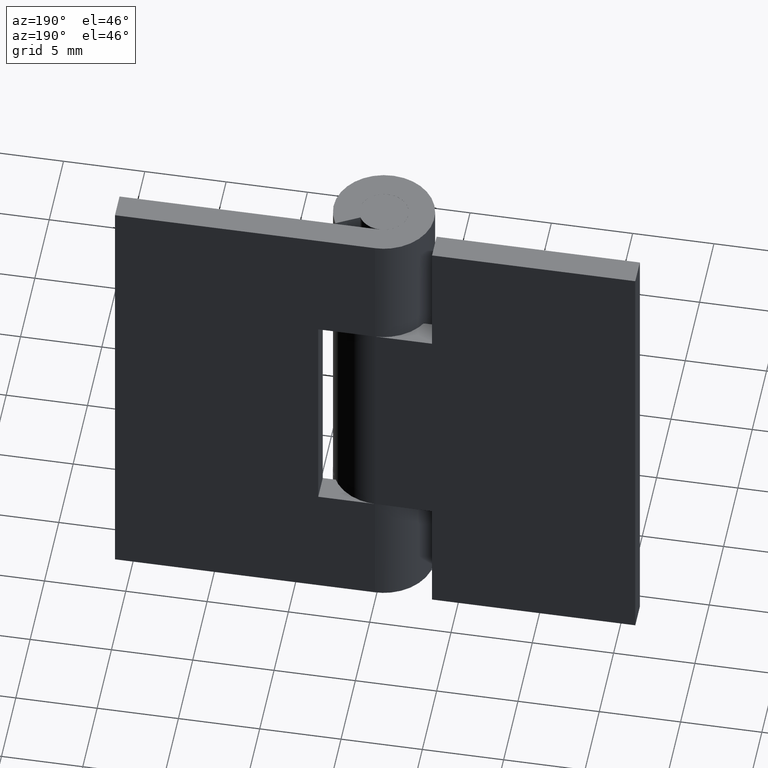
[diagram: clean part render]
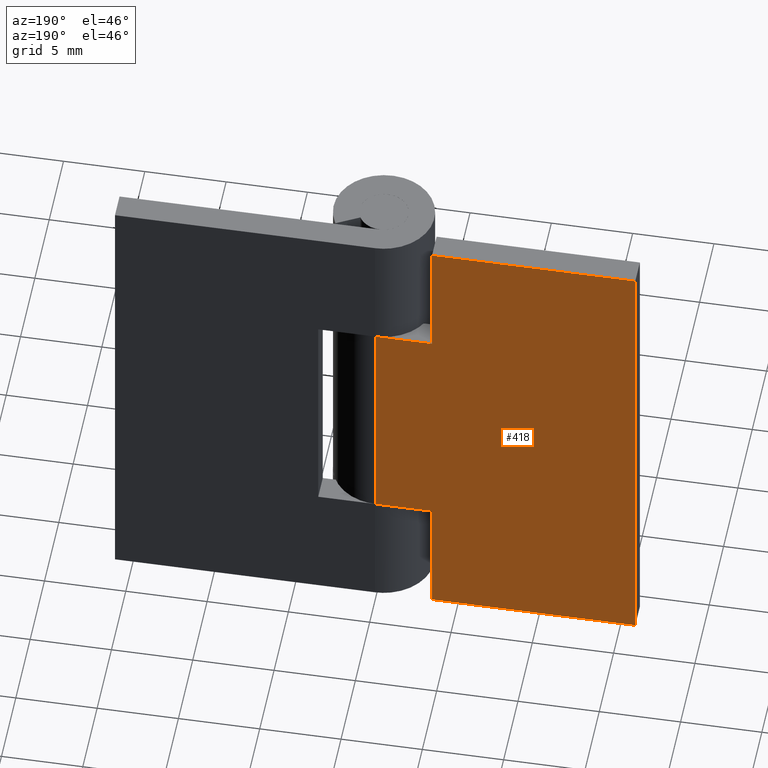
[diagram: same view with one face highlighted and labeled with its STEP entity id]
A machine part, auxiliary view. The second image highlights one B-rep face of the part: STEP entity #418.
In plain terms, the highlighted face is a freeform B-spline surface patch.
Its self-contained STEP definition (entity closure, byte-faithful):
#72=CARTESIAN_POINT('',(-0.003521362805221,3.099998000000000,22.300002999999801));
#73=VERTEX_POINT('',#72);
#79=CARTESIAN_POINT('',(-3.500000000000100,3.099998000000050,22.300002999999801));
#80=VERTEX_POINT('',#79);
#81=CARTESIAN_POINT('',(-0.003521362805221,3.099998000000000,22.300002999999801));
#82=CARTESIAN_POINT('',(-3.500000000000100,3.099998000000050,22.300002999999801));
#83=QUASI_UNIFORM_CURVE('',1,(#81,#82),.UNSPECIFIED.,.F.,.U.);
#84=EDGE_CURVE('',#73,#80,#83,.T.);
#135=CARTESIAN_POINT('',(-3.500000000000100,3.099998000000000,30.0));
#136=VERTEX_POINT('',#135);
#137=CARTESIAN_POINT('',(-3.500000000000100,3.099998000000050,22.300002999999801));
#138=CARTESIAN_POINT('',(-3.500000000000100,3.099998000000000,30.0));
#139=QUASI_UNIFORM_CURVE('',1,(#137,#138),.UNSPECIFIED.,.F.,.U.);
#140=EDGE_CURVE('',#80,#136,#139,.T.);
#220=CARTESIAN_POINT('',(-3.500000000000100,3.099998000000050,7.699996999999900));
#221=VERTEX_POINT('',#220);
#227=CARTESIAN_POINT('',(-0.003521362805221,3.099998000000050,7.699996999999900));
#228=VERTEX_POINT('',#227);
#229=CARTESIAN_POINT('',(-0.003521362805221,3.099998000000050,7.699996999999900));
#230=CARTESIAN_POINT('',(-3.500000000000100,3.099998000000050,7.699996999999900));
#231=QUASI_UNIFORM_CURVE('',1,(#229,#230),.UNSPECIFIED.,.F.,.U.);
#232=EDGE_CURVE('',#228,#221,#231,.T.);
#254=CARTESIAN_POINT('',(-3.500000000000100,3.099998000000050,0.0));
#255=VERTEX_POINT('',#254);
#261=CARTESIAN_POINT('',(-3.500000000000100,3.099998000000050,7.699996999999900));
#262=CARTESIAN_POINT('',(-3.500000000000100,3.099998000000050,0.0));
#263=QUASI_UNIFORM_CURVE('',1,(#261,#262),.UNSPECIFIED.,.F.,.U.);
#264=EDGE_CURVE('',#221,#255,#263,.T.);
#283=CARTESIAN_POINT('',(-16.0,3.099998000000000,30.0));
#284=VERTEX_POINT('',#283);
#285=CARTESIAN_POINT('',(-3.500000000000100,3.099998000000000,30.0));
#286=CARTESIAN_POINT('',(-16.0,3.099998000000000,30.0));
#287=QUASI_UNIFORM_CURVE('',1,(#285,#286),.UNSPECIFIED.,.F.,.U.);
#288=EDGE_CURVE('',#136,#284,#287,.T.);
#303=CARTESIAN_POINT('',(-16.0,3.099998000000000,0.0));
#304=VERTEX_POINT('',#303);
#318=CARTESIAN_POINT('',(-16.0,3.099998000000000,30.0));
#319=CARTESIAN_POINT('',(-16.0,3.099998000000000,0.0));
#320=QUASI_UNIFORM_CURVE('',1,(#318,#319),.UNSPECIFIED.,.F.,.U.);
#321=EDGE_CURVE('',#284,#304,#320,.T.);
#331=CARTESIAN_POINT('',(-3.500000000000100,3.099998000000050,0.0));
#332=CARTESIAN_POINT('',(-16.0,3.099998000000000,0.0));
#333=QUASI_UNIFORM_CURVE('',1,(#331,#332),.UNSPECIFIED.,.F.,.U.);
#334=EDGE_CURVE('',#255,#304,#333,.T.);
#399=CARTESIAN_POINT('',(-16.799024076923601,3.099998000000000,31.498499941854181));
#400=CARTESIAN_POINT('',(-16.799024076923601,3.099998000000000,-1.498500746516883));
#401=CARTESIAN_POINT('',(0.795503143177370,3.099998000000000,31.498499941854181));
#402=CARTESIAN_POINT('',(0.795503143177370,3.099998000000000,-1.498500746516883));
#403=B_SPLINE_SURFACE_WITH_KNOTS('',1,1,((#399,#401),(#400,#402)),.UNSPECIFIED.,.F.,.F.,.U.,(2,2),(2,2),(0.0,32.997000688371060),(0.0,17.594527220100971),.UNSPECIFIED.);
#404=ORIENTED_EDGE('',*,*,#288,.F.);
#405=ORIENTED_EDGE('',*,*,#140,.F.);
#406=ORIENTED_EDGE('',*,*,#84,.F.);
#407=CARTESIAN_POINT('',(-0.003521362805221,3.099998000000000,22.300002999999801));
#408=CARTESIAN_POINT('',(-0.003521362805221,3.099998000000050,7.699996999999900));
#409=QUASI_UNIFORM_CURVE('',1,(#407,#408),.UNSPECIFIED.,.F.,.U.);
#410=EDGE_CURVE('',#73,#228,#409,.T.);
#411=ORIENTED_EDGE('',*,*,#410,.T.);
#412=ORIENTED_EDGE('',*,*,#232,.T.);
#413=ORIENTED_EDGE('',*,*,#264,.T.);
#414=ORIENTED_EDGE('',*,*,#334,.T.);
#415=ORIENTED_EDGE('',*,*,#321,.F.);
#416=EDGE_LOOP('',(#404,#405,#406,#411,#412,#413,#414,#415));
#417=FACE_OUTER_BOUND('',#416,.T.);
#418=ADVANCED_FACE('',(#417),#403,.F.);